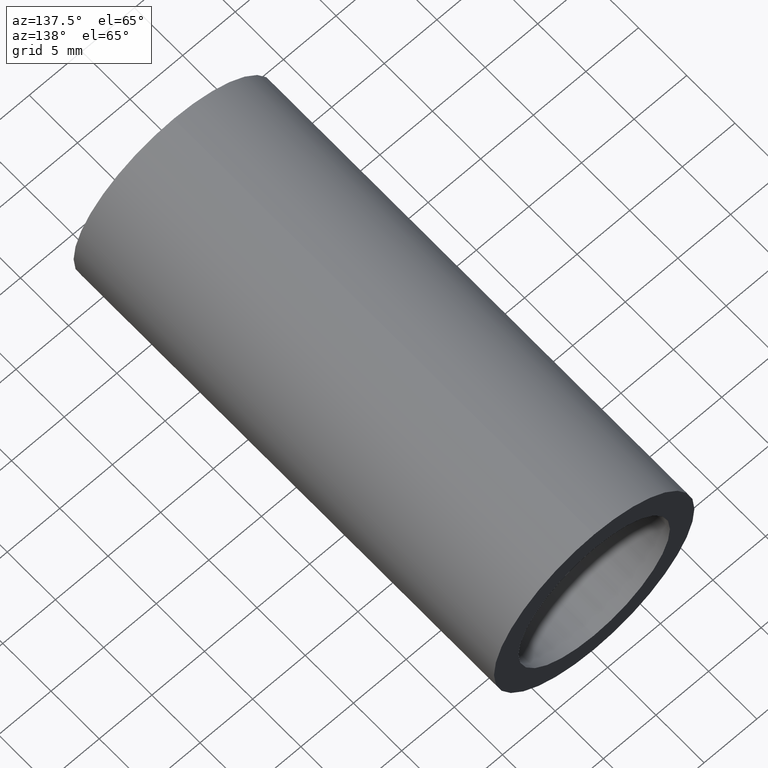
[diagram: clean part render]
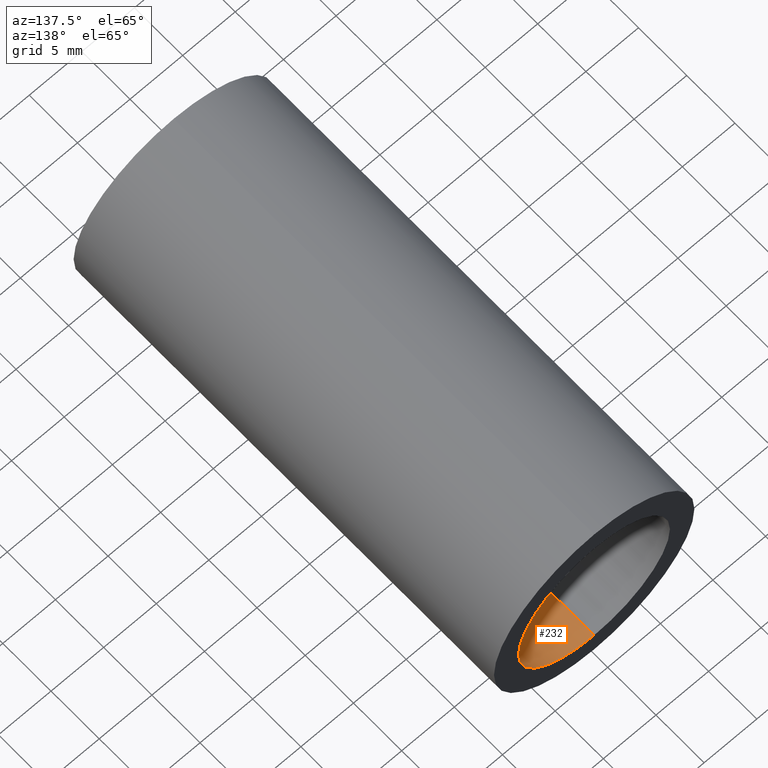
[diagram: same view with one face highlighted and labeled with its STEP entity id]
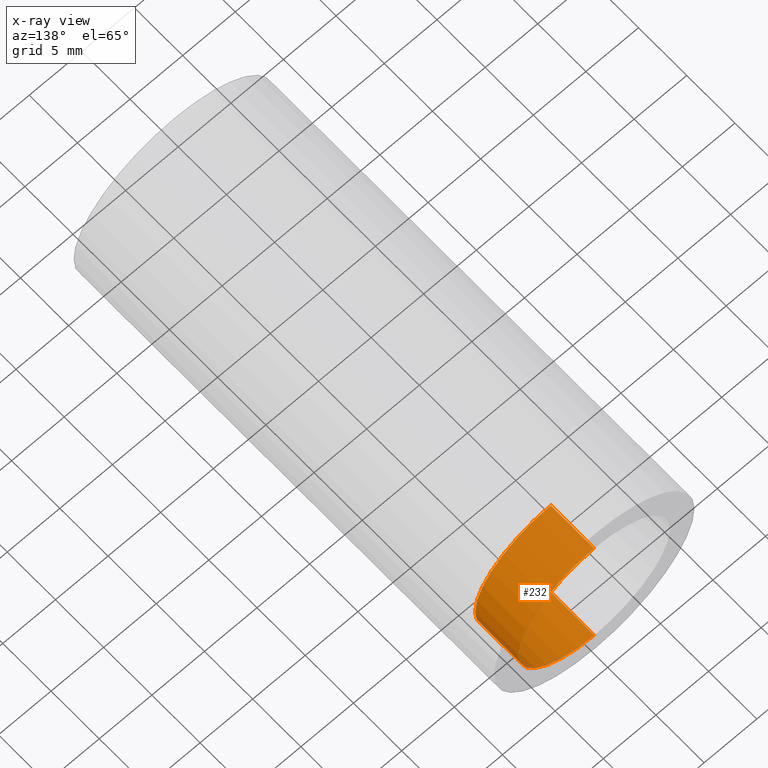
[diagram: x-ray of the same camera — body ghosted, the highlighted face saturated]
A machine part, auxiliary view. The second image highlights one B-rep face of the part: STEP entity #232.
The next image is the same camera in x-ray: the body ghosted, the highlighted face saturated — about 0% of this face is hidden behind the body in this view.
In plain terms, the highlighted cylindrical surface (partial cylindrical patch) has radius 7.2 mm, axis along (-0, 1, -0).
Its self-contained STEP definition (entity closure, byte-faithful):
#23 = AXIS2_PLACEMENT_3D ( 'NONE', #605, #548, #369 ) ;
#25 = CARTESIAN_POINT ( 'NONE',  ( 0.0000000000000000000, 161.3761669434274500, 7.200000000000011700 ) ) ;
#27 = ORIENTED_EDGE ( 'NONE', *, *, #405, .F. ) ;
#62 = CARTESIAN_POINT ( 'NONE',  ( 8.817456953860957100E-016, 161.3761669434274500, -7.200000000000011700 ) ) ;
#72 = CARTESIAN_POINT ( 'NONE',  ( 8.817456953860959100E-016, 43.59999999999998700, -7.200000000000013500 ) ) ;
#112 = CARTESIAN_POINT ( 'NONE',  ( 8.817456953860957100E-016, 39.09999999999999400, -7.200000000000011700 ) ) ;
#143 = ORIENTED_EDGE ( 'NONE', *, *, #521, .F. ) ;
#144 = DIRECTION ( 'NONE',  ( -0.0000000000000000000, 1.000000000000000000, -0.0000000000000000000 ) ) ;
#157 = ORIENTED_EDGE ( 'NONE', *, *, #367, .T. ) ;
#183 = VERTEX_POINT ( 'NONE', #456 ) ;
#232 = ADVANCED_FACE ( 'NONE', ( #336 ), #492, .F. ) ;
#237 = CARTESIAN_POINT ( 'NONE',  ( 0.0000000000000000000, 39.09999999999999400, 0.0000000000000000000 ) ) ;
#244 = LINE ( 'NONE', #25, #442 ) ;
#251 = VECTOR ( 'NONE', #467, 1000.000000000000000 ) ;
#266 = CIRCLE ( 'NONE', #23, 7.200000000000012600 ) ;
#268 = VERTEX_POINT ( 'NONE', #581 ) ;
#327 = ORIENTED_EDGE ( 'NONE', *, *, #508, .T. ) ;
#336 = FACE_OUTER_BOUND ( 'NONE', #393, .T. ) ;
#345 = DIRECTION ( 'NONE',  ( -0.0000000000000000000, 1.000000000000000000, -0.0000000000000000000 ) ) ;
#346 = CIRCLE ( 'NONE', #603, 7.200000000000011700 ) ;
#367 = EDGE_CURVE ( 'NONE', #268, #540, #266, .T. ) ;
#369 = DIRECTION ( 'NONE',  ( 0.0000000000000000000, 0.0000000000000000000, 1.000000000000000000 ) ) ;
#393 = EDGE_LOOP ( 'NONE', ( #27, #143, #327, #157 ) ) ;
#405 = EDGE_CURVE ( 'NONE', #412, #540, #616, .T. ) ;
#409 = CARTESIAN_POINT ( 'NONE',  ( 0.0000000000000000000, 161.3761669434274500, 0.0000000000000000000 ) ) ;
#412 = VERTEX_POINT ( 'NONE', #112 ) ;
#442 = VECTOR ( 'NONE', #476, 1000.000000000000000 ) ;
#448 = AXIS2_PLACEMENT_3D ( 'NONE', #409, #144, #491 ) ;
#456 = CARTESIAN_POINT ( 'NONE',  ( 0.0000000000000000000, 39.09999999999999400, 7.200000000000011700 ) ) ;
#467 = DIRECTION ( 'NONE',  ( -0.0000000000000000000, 1.000000000000000000, -0.0000000000000000000 ) ) ;
#476 = DIRECTION ( 'NONE',  ( -0.0000000000000000000, 1.000000000000000000, -0.0000000000000000000 ) ) ;
#491 = DIRECTION ( 'NONE',  ( 0.0000000000000000000, 0.0000000000000000000, 1.000000000000000000 ) ) ;
#492 = CYLINDRICAL_SURFACE ( 'NONE', #448, 7.200000000000011700 ) ;
#508 = EDGE_CURVE ( 'NONE', #183, #268, #244, .T. ) ;
#521 = EDGE_CURVE ( 'NONE', #183, #412, #346, .T. ) ;
#540 = VERTEX_POINT ( 'NONE', #72 ) ;
#548 = DIRECTION ( 'NONE',  ( -0.0000000000000000000, 1.000000000000000000, -0.0000000000000000000 ) ) ;
#570 = DIRECTION ( 'NONE',  ( 0.0000000000000000000, 0.0000000000000000000, 1.000000000000000000 ) ) ;
#581 = CARTESIAN_POINT ( 'NONE',  ( 0.0000000000000000000, 43.59999999999998700, 7.200000000000012600 ) ) ;
#603 = AXIS2_PLACEMENT_3D ( 'NONE', #237, #345, #570 ) ;
#605 = CARTESIAN_POINT ( 'NONE',  ( 0.0000000000000000000, 43.59999999999998700, 0.0000000000000000000 ) ) ;
#616 = LINE ( 'NONE', #62, #251 ) ;